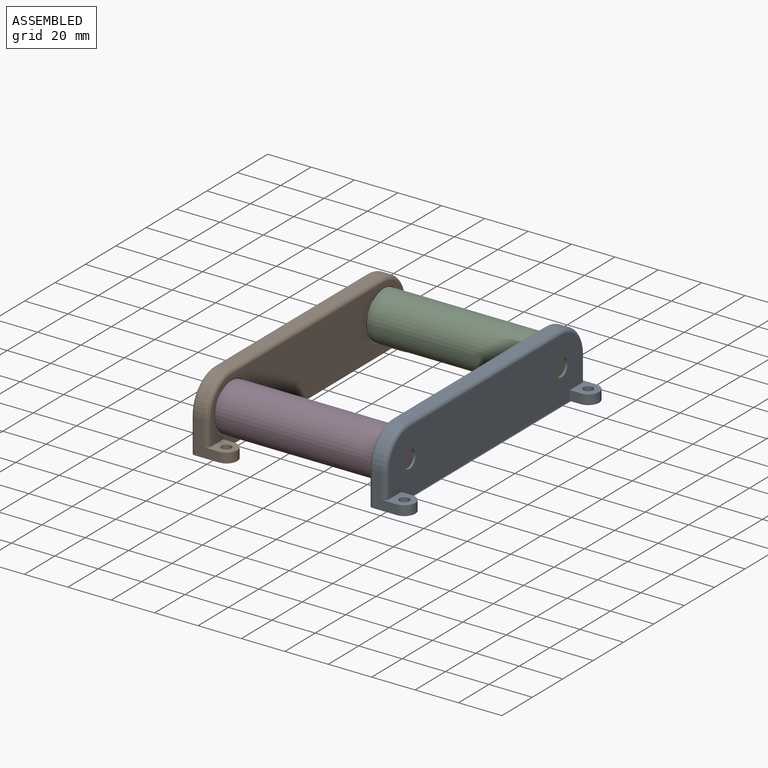
[diagram: assembled view]
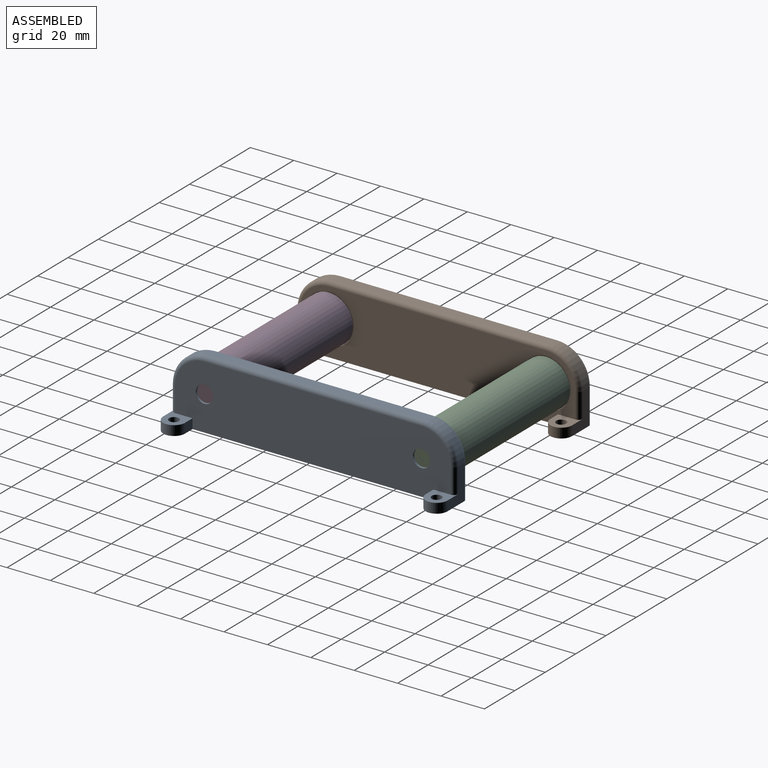
[diagram: assembled view, second angle]
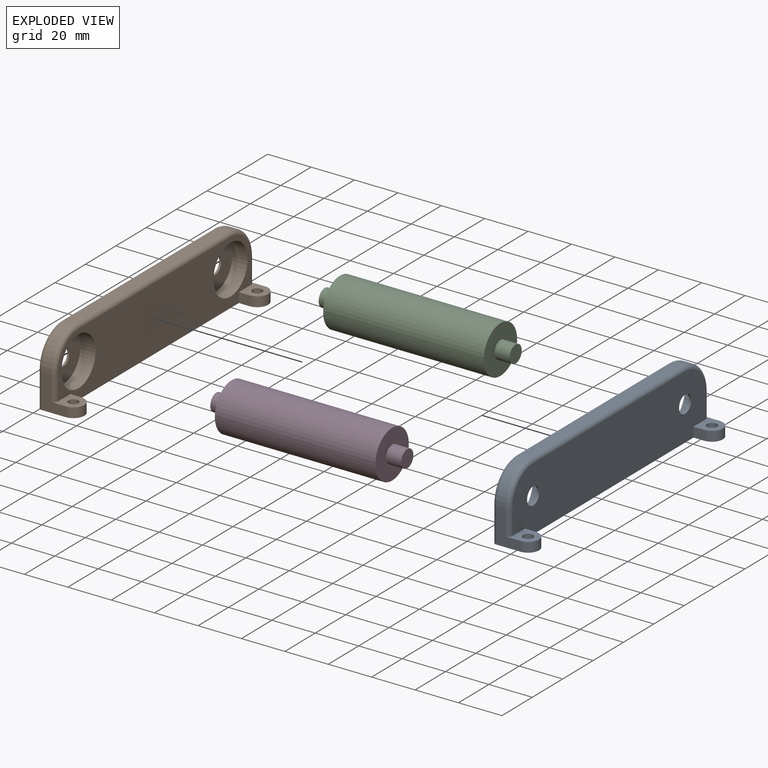
[diagram: exploded view]
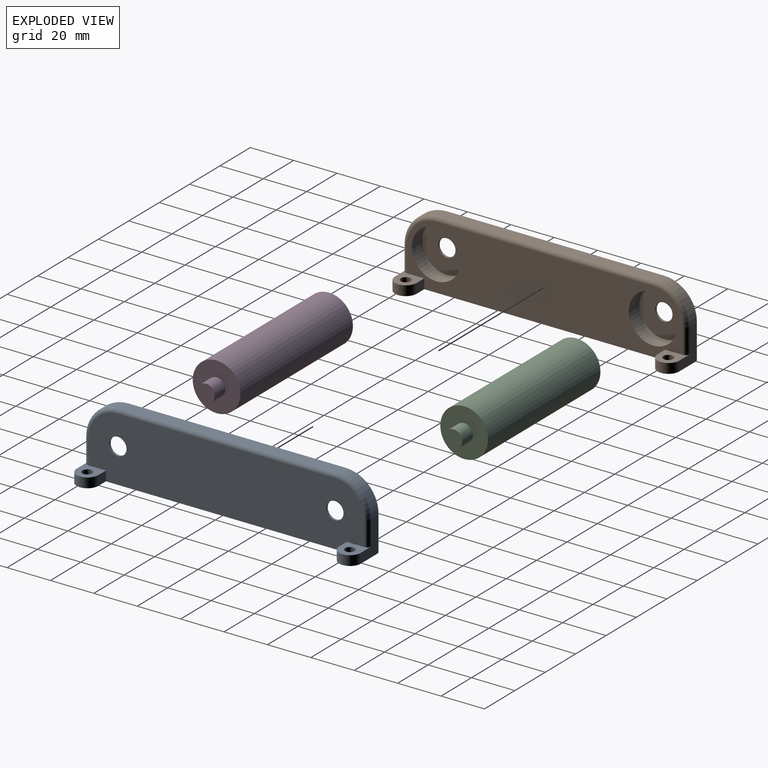
[diagram: exploded view, second angle]
ASSEMBLY  parts=4 mates=3
PART A: 32 faces, bbox 18x133.6x32.8 mm
  f0: cylinder r=11.25mm len=22.5mm, axis (-1,0,0), area 494.8mm2, adj f9,f21
  f1: cylinder r=11.25mm len=22.5mm, axis (-1,0,0), area 494.8mm2, adj f9,f19
  f2: plane 127x29.5mm, normal (1,0,0), area 3495.8mm2, adj f6,f10,f11,f12,f13,f18,f20,f27
  f3: plane 100.16x4mm, normal (0,0,1), area 400.6mm2, adj f4,f8,f24,f29
  f4: cylinder r=15.5mm len=15.34mm, axis (-1,0,0), area 96.1mm2, adj f3,f5,f23,f28
  f5: plane 16.16x11mm, normal (0,-1,0), area 96.1mm2, adj f4,f6,f10,f17,f22,f27
  f6: plane 131x18mm, normal (0,0,-1), area 1191.6mm2, adj f2,f5,f7,f9,f11,f13,f14,f15
  f7: plane 16x11mm, normal (0,1,0), area 95.5mm2, adj f6,f8,f12,f16,f26,f31
  f8: cylinder r=15.5mm len=15.5mm, axis (-1,0,0), area 97.4mm2, adj f3,f7,f25,f30
  f9: plane 127x29.5mm, normal (-1,0,0), area 2873.1mm2, adj f0,f1,f6,f22,f23,f24,f25,f26
  f10: plane 12x10mm, normal (0,0,1), area 73.5mm2, adj f2,f5,f11,f15,f17,f27
  f11: plane 5x4.5mm, normal (0,1,0), area 22.5mm2, adj f2,f6,f10,f17
  f12: plane 12x10mm, normal (0,0,1), area 73.5mm2, adj f2,f7,f13,f14,f16,f31
  f13: plane 5x4.5mm, normal (0,-1,0), area 22.5mm2, adj f2,f6,f12,f16
  f14: cylinder r=2.3mm len=4.6mm, axis (0,0,1), area 65mm2, adj f6,f12
  f15: cylinder r=2.3mm len=4.6mm, axis (0,0,1), area 65mm2, adj f6,f10
  f16: cylinder r=5mm len=10mm, axis (0,0,-1), area 70.7mm2, adj f6,f7,f12,f13
  f17: cylinder r=5mm len=10mm, axis (0,0,-1), area 70.7mm2, adj f5,f6,f10,f11
  f18: cylinder r=4mm len=8mm, axis (1,0,0), area 25.1mm2, adj f2,f19
  f19: plane 22.5x22.5mm, normal (-1,0,0), area 347.3mm2, adj f1,f18
  f20: cylinder r=4mm len=8mm, axis (1,0,0), area 25.1mm2, adj f2,f21
  f21: plane 22.5x22.5mm, normal (-1,0,0), area 347.3mm2, adj f0,f20
  f22: cylinder r=2mm len=16.16mm, axis (0,0,-1), area 50.7mm2, adj f5,f6,f9,f23
  f23: torus R=13.5mm, axis (1,0,0), area 71.9mm2, adj f4,f9,f22,f24
  f24: cylinder r=2mm len=100.16mm, axis (0,-1,0), area 314.6mm2, adj f3,f9,f23,f25
  f25: torus R=13.5mm, axis (1,0,0), area 72.9mm2, adj f8,f9,f24,f26
  f26: cylinder r=2mm len=16mm, axis (0,0,1), area 50.3mm2, adj f6,f7,f9,f25
  f27: cylinder r=2mm len=11.66mm, axis (0,0,1), area 36.6mm2, adj f2,f5,f10,f28
  f28: torus R=13.5mm, axis (1,0,0), area 71.9mm2, adj f2,f4,f27,f29
  f29: cylinder r=2mm len=100.16mm, axis (0,1,0), area 314.6mm2, adj f2,f3,f28,f30
  f30: torus R=13.5mm, axis (1,0,0), area 72.9mm2, adj f2,f8,f29,f31
  f31: cylinder r=2mm len=11.5mm, axis (0,0,-1), area 36.1mm2, adj f2,f7,f12,f30
PART B: 32 faces, bbox 18x133.6x32.8 mm
  f0: cylinder r=11.25mm len=22.5mm, axis (-1,0,0), area 494.8mm2, adj f2,f31
  f1: cylinder r=11.25mm len=22.5mm, axis (-1,0,0), area 494.8mm2, adj f2,f29
  f2: plane 127x29.5mm, normal (1,0,0), area 2801.1mm2, adj f0,f1,f6,f10,f11,f12,f13,f23
  f3: plane 100.16x4mm, normal (0,0,1), area 400.6mm2, adj f4,f8,f20,f25
  f4: cylinder r=15.5mm len=15.34mm, axis (-1,0,0), area 96.1mm2, adj f3,f5,f19,f24
  f5: plane 16.16x11mm, normal (0,-1,0), area 96.1mm2, adj f4,f6,f10,f17,f18,f23
  f6: plane 131x18mm, normal (0,0,-1), area 1191.6mm2, adj f2,f5,f7,f9,f11,f13,f14,f15
  f7: plane 16x11mm, normal (0,1,0), area 95.5mm2, adj f6,f8,f12,f16,f22,f27
  f8: cylinder r=15.5mm len=15.5mm, axis (-1,0,0), area 97.4mm2, adj f3,f7,f21,f26
  f9: plane 127x29.5mm, normal (-1,0,0), area 3567.8mm2, adj f6,f18,f19,f20,f21,f22,f28,f30
  f10: plane 12x10mm, normal (0,0,1), area 73.5mm2, adj f2,f5,f11,f15,f17,f23
  f11: plane 5x4.5mm, normal (0,1,0), area 22.5mm2, adj f2,f6,f10,f17
  f12: plane 12x10mm, normal (0,0,1), area 73.5mm2, adj f2,f7,f13,f14,f16,f27
  f13: plane 5x4.5mm, normal (0,-1,0), area 22.5mm2, adj f2,f6,f12,f16
  f14: cylinder r=2.3mm len=4.6mm, axis (0,0,1), area 65mm2, adj f6,f12
  f15: cylinder r=2.3mm len=4.6mm, axis (0,0,1), area 65mm2, adj f6,f10
  f16: cylinder r=5mm len=10mm, axis (0,0,-1), area 70.7mm2, adj f6,f7,f12,f13
  f17: cylinder r=5mm len=10mm, axis (0,0,-1), area 70.7mm2, adj f5,f6,f10,f11
  f18: cylinder r=2mm len=16.16mm, axis (0,0,-1), area 50.7mm2, adj f5,f6,f9,f19
  f19: torus R=13.5mm, axis (1,0,0), area 71.9mm2, adj f4,f9,f18,f20
  f20: cylinder r=2mm len=100.16mm, axis (0,-1,0), area 314.6mm2, adj f3,f9,f19,f21
  f21: torus R=13.5mm, axis (1,0,0), area 72.9mm2, adj f8,f9,f20,f22
  f22: cylinder r=2mm len=16mm, axis (0,0,1), area 50.3mm2, adj f6,f7,f9,f21
  f23: cylinder r=2mm len=11.66mm, axis (0,0,1), area 36.6mm2, adj f2,f5,f10,f24
  f24: torus R=13.5mm, axis (1,0,0), area 71.9mm2, adj f2,f4,f23,f25
  f25: cylinder r=2mm len=100.16mm, axis (0,1,0), area 314.6mm2, adj f2,f3,f24,f26
  f26: torus R=13.5mm, axis (1,0,0), area 72.9mm2, adj f2,f8,f25,f27
  f27: cylinder r=2mm len=11.5mm, axis (0,0,-1), area 36.1mm2, adj f2,f7,f12,f26
  f28: cylinder r=4mm len=8mm, axis (-1,0,0), area 25.1mm2, adj f9,f29
  f29: plane 22.5x22.5mm, normal (1,0,0), area 347.3mm2, adj f1,f28
  f30: cylinder r=4mm len=8mm, axis (-1,0,0), area 25.1mm2, adj f9,f31
  f31: plane 22.5x22.5mm, normal (1,0,0), area 347.3mm2, adj f0,f30
PART C: 7 faces, bbox 88x22x22 mm
  f0: cylinder r=11mm len=74mm, axis (-1,0,0), area 5114.5mm2, adj f1,f2
  f1: plane 22x22mm, normal (1,0,0), area 329.9mm2, adj f0,f5
  f2: plane 22x22mm, normal (-1,0,0), area 329.9mm2, adj f0,f3
  f3: cylinder r=4mm len=8mm, axis (1,0,0), area 175.9mm2, adj f2,f4
  f4: plane 8x8mm, normal (-1,0,0), area 50.3mm2, adj f3
  f5: cylinder r=4mm len=8mm, axis (-1,0,0), area 175.9mm2, adj f1,f6
  f6: plane 8x8mm, normal (1,0,0), area 50.3mm2, adj f5
PART D: same geometry as C
PLACE A t=(-5.09,4.99,4.09)mm fixed
PLACE B t=(-87.09,4.99,4.09)mm
PLACE C t=(-42.09,54.99,4.34)mm
PLACE D t=(-42.09,-45.01,4.34)mm
MATE fastened D.f0 <-> A.f1  axis (1,0,0) through (-5.09,-45.01,4.34)mm
MATE fastened D.f0 <-> B.f0  axis (-1,0,0) through (-79.09,-45.01,4.34)mm
MATE fastened C.f0 <-> A.f0  axis (1,0,0) through (-5.09,54.99,4.34)mm
